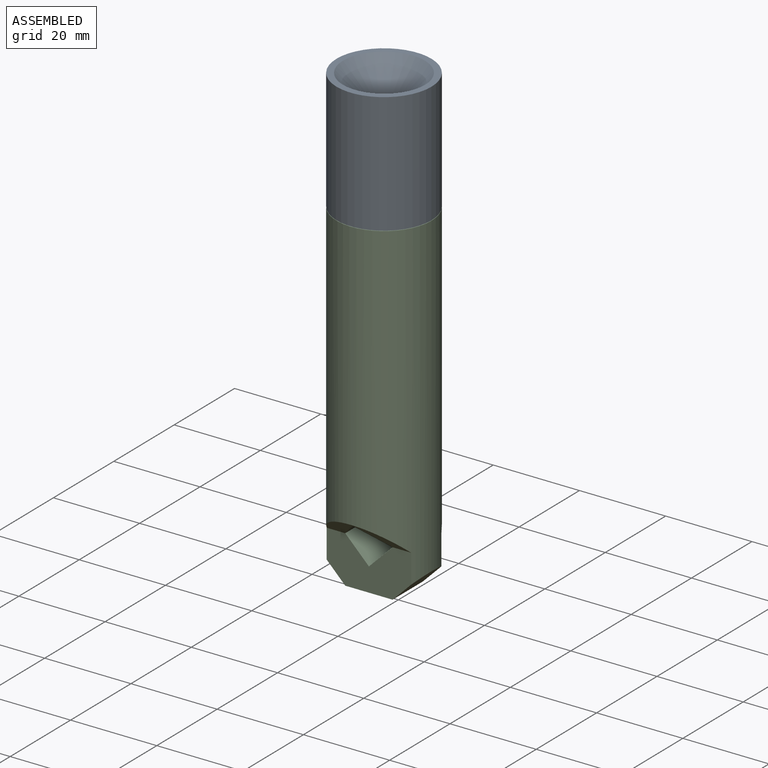
[diagram: assembled view]
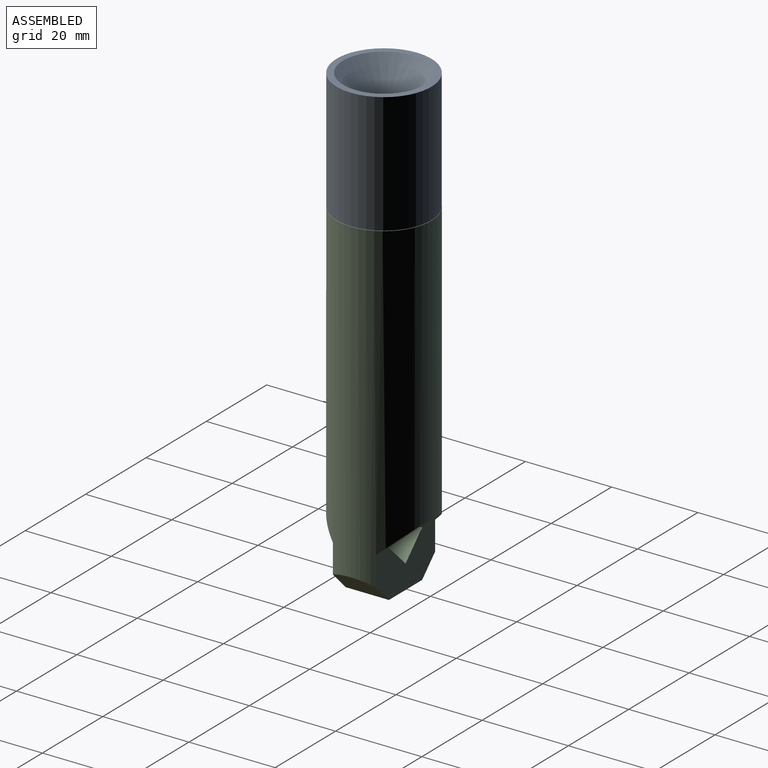
[diagram: assembled view, second angle]
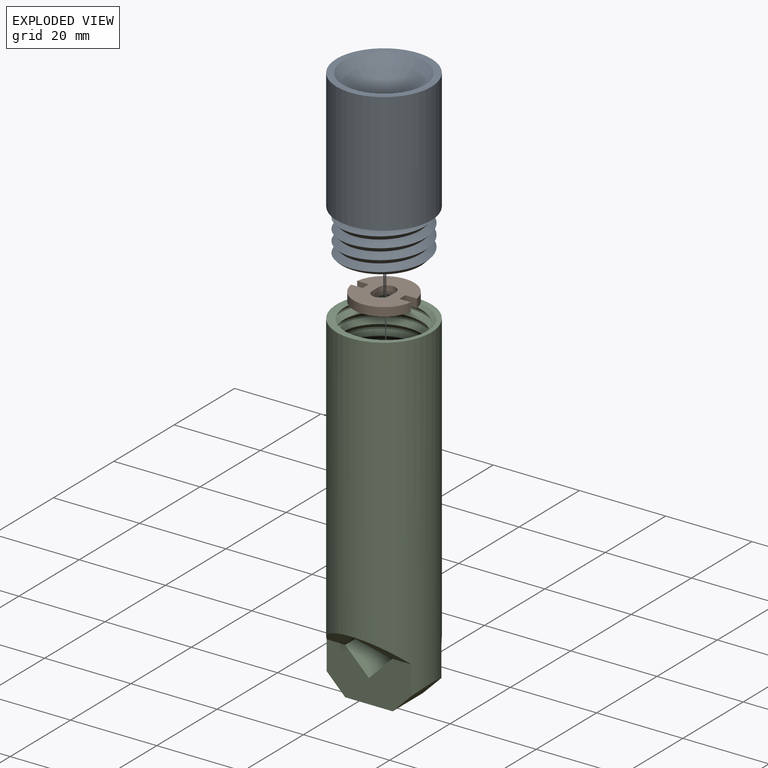
[diagram: exploded view]
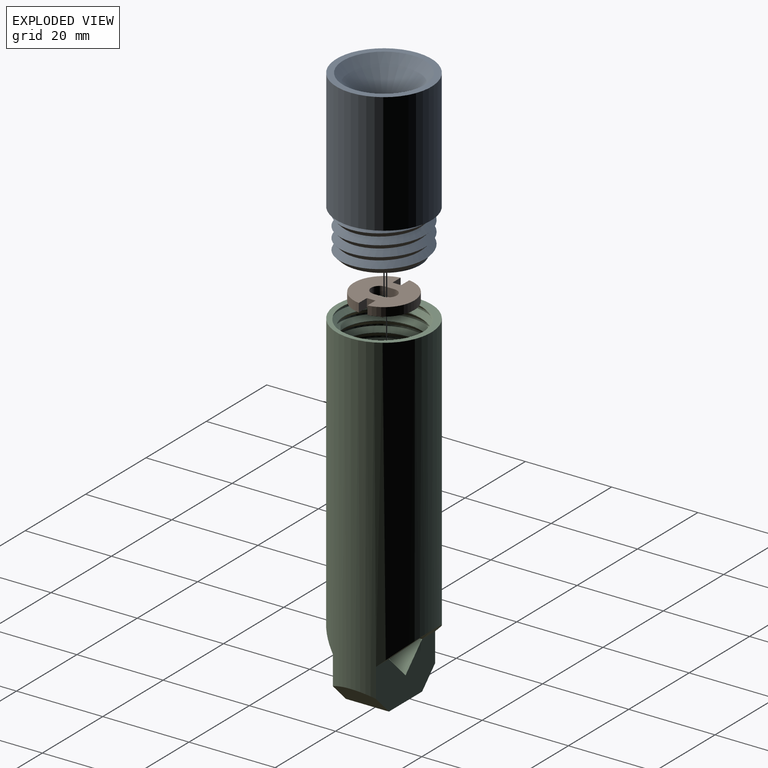
[diagram: exploded view, second angle]
ASSEMBLY  parts=3 mates=2
PART A: 30 faces, bbox 23x24.1x40.3 mm
  f0: cylinder r=7.5mm len=15mm, axis (0,0,-1), area 329.9mm2, adj f12,f27
  f1: bspline ~23.09x20mm, area 77.3mm2, adj f2,f6,f9,f23,f24
  f2: bspline ~17.5x10.1mm, area 8.4mm2, adj f1,f4,f6,f22,f24
  f3: bspline ~23.09x20mm, area 311.3mm2, adj f7,f9,f23
  f4: cylinder r=8.5mm len=15.4mm, axis (0,0,-1), area 10.7mm2, adj f2,f6,f22
  f5: cylinder r=8.5mm len=15.4mm, axis (0,0,-1), area 10.7mm2, adj f7,f8,f10
  f6: plane 18.77x17.95mm, normal (0,0,1), area 74.6mm2, adj f1,f2,f4,f22,f23,f28
  f7: plane 1.5x1.25mm, normal (0,-1,0), area 1.1mm2, adj f3,f5,f8,f10
  f8: bspline ~17.68x17.5mm, area 8.6mm2, adj f5,f7,f9,f10
  f9: bspline ~23.09x20mm, area 387.9mm2, adj f1,f3,f8,f10,f23,f24,f25
  f10: plane 23.03x23.03mm, normal (0,0,1), area 127.7mm2, adj f5,f7,f8,f9,f11
  f11: cylinder r=11mm len=28mm, axis (0,0,1), area 1935.2mm2, adj f10,f14
  f12: cone r=9mm half-angle=45deg, axis (0,0,-1), area 110mm2, adj f0,f13
  f13: cylinder r=9mm len=18mm, axis (0,0,1), area 339.3mm2, adj f12,f20
  f14: plane 22x22mm, normal (0,0,-1), area 96.6mm2, adj f11,f17
  f15: cone r=9.5mm half-angle=45deg, axis (0,0,1), area 281mm2, adj f16,f18
  f16: cylinder r=3mm len=6mm, axis (0,0,-1), area 75.4mm2, adj f15,f17
  f17: cone r=3mm half-angle=45deg, axis (0,0,-1), area 361mm2, adj f14,f16
  f18: plane 18x18mm, normal (0,0,1), area 27.5mm2, adj f15,f19
  f19: cylinder r=9mm len=18mm, axis (0,0,1), area 28.3mm2, adj f18,f21
  f20: plane 19x19mm, normal (0,0,-1), area 29.1mm2, adj f13,f21
  f21: cone r=9.5mm half-angle=45deg, axis (0,0,1), area 41.1mm2, adj f19,f20
  f22: plane 3.52x1.52mm, normal (1,0,0), area 4.5mm2, adj f2,f4,f6,f23,f24,f25
  f23: plane 3.51x1.48mm, normal (0,1,0), area 3.1mm2, adj f1,f3,f6,f9,f22,f25
  f24: plane 2.51x1.48mm, normal (0,-1,0), area 2.1mm2, adj f1,f2,f9,f22,f25
  f25: plane 1.51x0.51mm, normal (0,0,1), area 0.7mm2, adj f9,f22,f23,f24
  f26: cylinder r=6.75mm len=13.5mm, axis (0,0,1), area 42.4mm2, adj f27,f29
  f27: plane 15x15mm, normal (0,0,-1), area 33.6mm2, adj f0,f26
  f28: cylinder r=7.5mm len=15mm, axis (0,0,1), area 259.2mm2, adj f6,f29
  f29: plane 15x15mm, normal (0,0,1), area 33.6mm2, adj f26,f28
PART B: 27 faces, bbox 14x13.9x4.5 mm
  f0: plane 13.86x6mm, normal (0,0,1), area 56.7mm2, adj f2,f10,f14,f18,f21
  f1: plane 13.86x6mm, normal (0,0,1), area 56.7mm2, adj f3,f9,f12,f17,f22
  f2: cylinder r=7mm len=13.86mm, axis (0,0,-1), area 40mm2, adj f0,f18,f21,f25
  f3: cylinder r=7mm len=13.86mm, axis (0,0,-1), area 40mm2, adj f1,f17,f22,f25
  f4: plane 2x1.29mm, normal (0,0.71,-0.71), area 3.7mm2, adj f9,f10,f11,f15,f26
  f5: plane 2x1.29mm, normal (0,-0.71,-0.71), area 3.7mm2, adj f9,f10,f13,f16,f26
  f6: plane 2.5x2.5mm, normal (0,0.71,0.71), area 7.1mm2, adj f7,f9,f10,f23,f24
  f7: plane 3.5x2mm, normal (0,0,1), area 7mm2, adj f6,f8,f9,f10
  f8: plane 2.5x2.5mm, normal (0,-0.71,0.71), area 7.1mm2, adj f7,f9,f10,f19,f20
  f9: plane 8.5x2.5mm, normal (1,0,0), area 11.5mm2, adj f1,f4,f5,f6,f7,f8,f26
  f10: plane 8.5x2.5mm, normal (-1,0,0), area 11.5mm2, adj f0,f4,f5,f6,f7,f8,f26
  f11: plane 2x1mm, normal (0,1,0), area 2mm2, adj f4,f12,f15,f25
  f12: cylinder r=2mm len=4mm, axis (0,0,1), area 12.6mm2, adj f1,f11,f13,f25
  f13: plane 2x1mm, normal (0,-1,0), area 2mm2, adj f5,f12,f16,f25
  f14: cylinder r=2mm len=4mm, axis (0,0,1), area 12.6mm2, adj f0,f15,f16,f25
  f15: plane 2x1mm, normal (0,1,0), area 2mm2, adj f4,f11,f14,f25
  f16: plane 2x1mm, normal (0,-1,0), area 2mm2, adj f5,f13,f14,f25
  f17: plane 2.68x2mm, normal (-1,0,0), area 5.4mm2, adj f1,f3,f19,f25
  f18: plane 2.68x2mm, normal (1,0,0), area 5.4mm2, adj f0,f2,f20,f25
  f19: plane 2x1mm, normal (0,-1,0), area 2mm2, adj f8,f17,f20,f25
  f20: plane 2x1mm, normal (0,-1,0), area 2mm2, adj f8,f18,f19,f25
  f21: plane 2.69x2.02mm, normal (1,0,0), area 5.4mm2, adj f0,f2,f24,f25
  f22: plane 2.68x2mm, normal (-1,0,0), area 5.4mm2, adj f1,f3,f23,f25
  f23: plane 2x1mm, normal (0,1,0), area 2mm2, adj f6,f22,f24,f25
  f24: plane 2.02x1.02mm, normal (0,1,0), area 2mm2, adj f6,f21,f23,f25
  f25: plane 14x13.86mm, normal (0,0,-1), area 122.4mm2, adj f2,f3,f11,f12,f13,f14,f15,f16
  f26: plane 2x1.41mm, normal (0,0,-1), area 2.8mm2, adj f4,f5,f9,f10
PART C: 30 faces, bbox 24.1x25.2x82.3 mm
  f0: plane 9.82x6mm, normal (0,0.68,-0.74), area 34.7mm2, adj f7,f12,f27
  f1: plane 9.79x6mm, normal (0,-0.68,-0.74), area 34.6mm2, adj f3,f12,f24
  f2: plane 10x5.5mm, normal (0.71,0,-0.71), area 72.2mm2, adj f3,f7,f12,f29
  f3: plane 19.6x11mm, normal (0,-1,0), area 166.8mm2, adj f1,f2,f4,f6,f12,f25,f26,f29
  f4: plane 9.82x6mm, normal (0,-0.68,-0.74), area 34.7mm2, adj f3,f12,f27
  f5: plane 13.13x12.13mm, normal (-1,0,0), area 125.3mm2, adj f6,f12
  f6: plane 10x5.5mm, normal (-0.71,0,-0.71), area 72.4mm2, adj f3,f5,f7,f12,f29
  f7: plane 19.6x11mm, normal (0,1,0), area 166.8mm2, adj f0,f2,f6,f8,f12,f25,f26,f29
  f8: plane 9.78x6mm, normal (0,0.68,-0.74), area 34.5mm2, adj f7,f12,f24
  f9: plane 10x0.02mm, normal (0,0,-1), area 0.2mm2, adj f24,f28
  f10: plane 2.29x0.59mm, normal (0,0,-1), area 0.7mm2, adj f16,f19
  f11: cylinder r=9mm len=18mm, axis (0,0,-1), area 38.5mm2, adj f13,f14,f16,f17,f18
  f12: cylinder r=11mm len=74.7mm, axis (0,0,-1), area 4633.2mm2, adj f0,f1,f2,f3,f4,f5,f6,f7
  f13: plane 22.67x22.67mm, normal (0,0,1), area 92.7mm2, adj f11,f12,f15,f16,f17
  f14: plane 1.2x1mm, normal (0,1,0), area 0.7mm2, adj f11,f15,f17,f23
  f15: cylinder r=10mm len=20mm, axis (0,0,1), area 112.8mm2, adj f13,f14,f16,f17,f23
  f16: bspline ~23.09x20mm, area 337.6mm2, adj f10,f11,f13,f15,f22,f23
  f17: bspline ~23.09x20mm, area 314mm2, adj f11,f13,f14,f15
  f18: torus R=8.25mm, axis (0,0,1), area 115.8mm2, adj f11,f19,f21,f22,f23
  f19: cylinder r=1.5mm len=50.5mm, axis (0,0,1), area 361.1mm2, adj f10,f18,f20,f21,f22,f23
  f20: plane 17.53x15mm, normal (0,0,1), area 183.1mm2, adj f19,f21
  f21: cylinder r=7.5mm len=50.5mm, axis (0,0,1), area 2276.6mm2, adj f18,f19,f20
  f22: plane 8.38x7.88mm, normal (0,0,1), area 3.1mm2, adj f16,f18,f19
  f23: plane 9.75x9.09mm, normal (0,0,1), area 11.9mm2, adj f14,f15,f16,f18,f19
  f24: plane 22.03x5.53mm, normal (-0.71,0,-0.71), area 124.2mm2, adj f1,f8,f9,f25,f27
  f25: plane 10x5.5mm, normal (-0.71,0,0.71), area 77.8mm2, adj f3,f7,f24,f26
  f26: plane 10x5.5mm, normal (0.71,0,0.71), area 77.7mm2, adj f3,f7,f25,f27
  f27: plane 22.02x5.53mm, normal (0.71,0,-0.71), area 124.2mm2, adj f0,f4,f24,f26,f28
  f28: plane 10x0.02mm, normal (1,0,0), area 0.2mm2, adj f9,f27
  f29: plane 10.99x10mm, normal (0,0,-1), area 109.9mm2, adj f2,f3,f6,f7
PLACE A rot(axis=(0,1,0),180deg) t=(4.45,0.35,-16.81)mm
PLACE B rot(axis=(0.71,-0.71,0),180deg) t=(4.45,0.35,-22.31)mm
PLACE C t=(4.45,0.35,-26.9)mm
MATE fastened B.f2 <-> A.f0  axis (0,0,1) through (4.45,0.35,-21.31)mm
MATE slider C.f11 <-> A.f0  axis (0,0,-1) through (4.45,0.35,-54.47)mm
